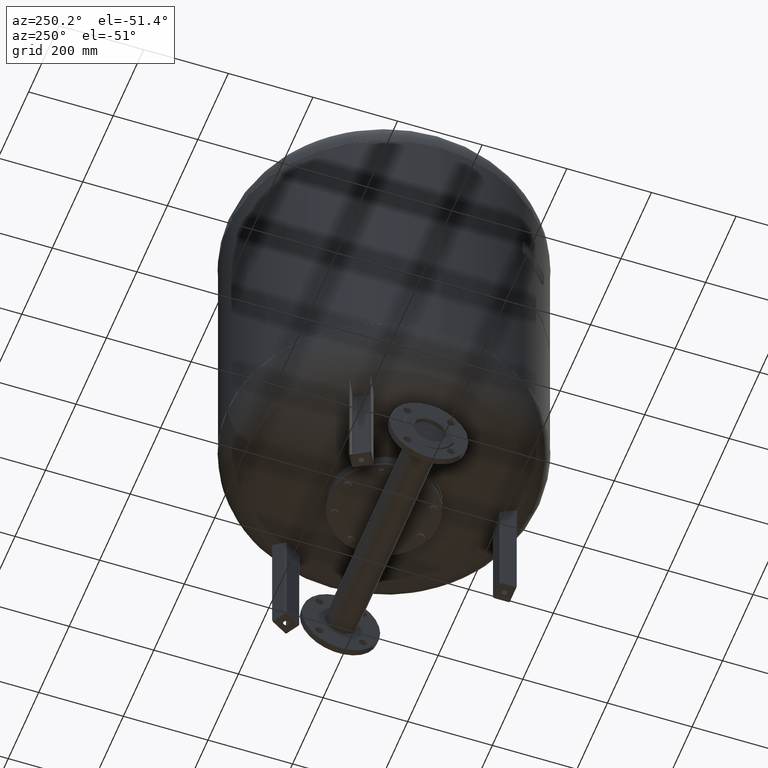
[diagram: clean part render]
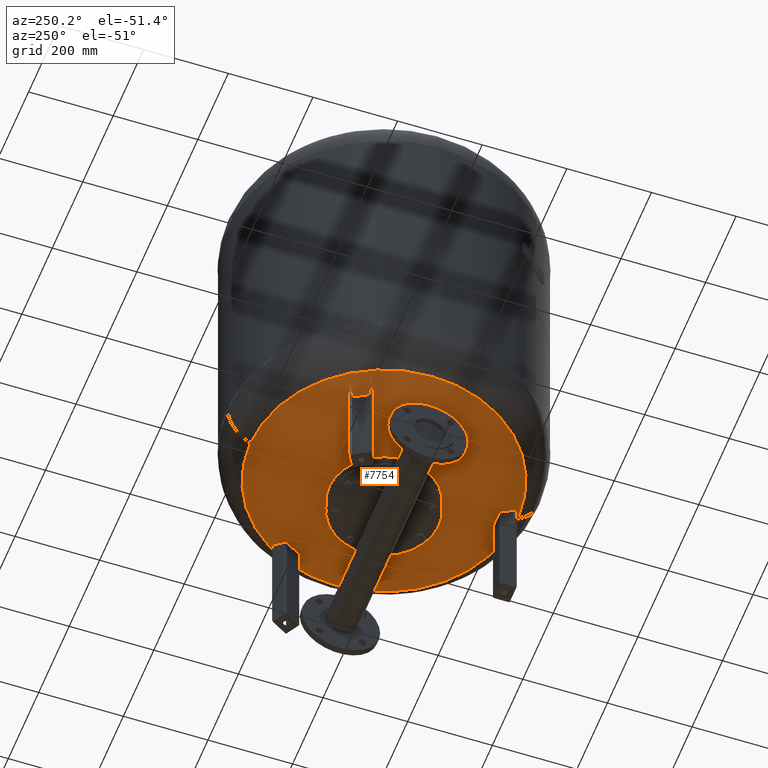
[diagram: same view with one face highlighted and labeled with its STEP entity id]
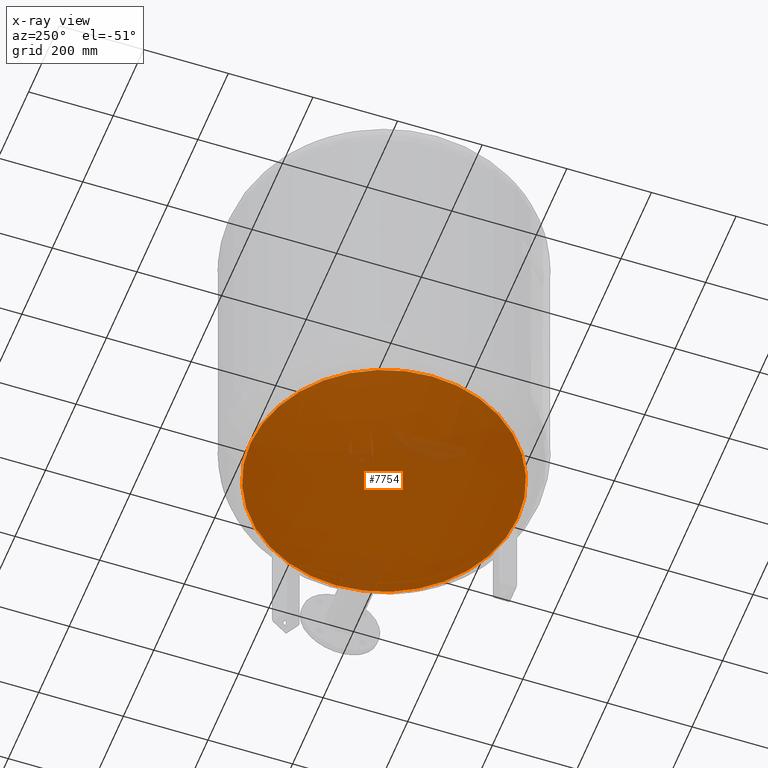
[diagram: x-ray of the same camera — body ghosted, the highlighted face saturated]
A machine part, auxiliary view. The second image highlights one B-rep face of the part: STEP entity #7754.
The next image is the same camera in x-ray: the body ghosted, the highlighted face saturated — about 6% of this face is hidden behind the body in this view.
In plain terms, the highlighted spherical surface has radius 594 mm.
Its self-contained STEP definition (entity closure, byte-faithful):
#7693=CARTESIAN_POINT('',(0.0,-315.931034482758610,276.985505725079410));
#7694=VERTEX_POINT('',#7693);
#7710=CARTESIAN_POINT('',(-3.868912E-014,315.931034482758610,276.985505725079630));
#7711=VERTEX_POINT('',#7710);
#7719=CARTESIAN_POINT('',(-315.931034482758610,-1.671377E-014,276.985505725079520));
#7720=VERTEX_POINT('',#7719);
#7721=CARTESIAN_POINT('',(0.0,-1.671377E-014,276.985505725079520));
#7722=DIRECTION('',(0.0,0.0,1.0));
#7723=DIRECTION('',(-1.0,0.0,0.0));
#7724=AXIS2_PLACEMENT_3D('',#7721,#7722,#7723);
#7725=CIRCLE('',#7724,315.931034482758610);
#7726=EDGE_CURVE('',#7711,#7720,#7725,.T.);
#7728=CARTESIAN_POINT('',(0.0,-1.671377E-014,276.985505725079520));
#7729=DIRECTION('',(0.0,0.0,1.0));
#7730=DIRECTION('',(-1.0,0.0,0.0));
#7731=AXIS2_PLACEMENT_3D('',#7728,#7729,#7730);
#7732=CIRCLE('',#7731,315.931034482758610);
#7733=EDGE_CURVE('',#7720,#7694,#7732,.T.);
#7738=CARTESIAN_POINT('',(0.0,-1.091160E-013,780.0));
#7739=DIRECTION('',(0.0,-1.0,0.0));
#7740=DIRECTION('',(1.0,0.0,0.0));
#7741=AXIS2_PLACEMENT_3D('',#7738,#7739,#7740);
#7742=SPHERICAL_SURFACE('',#7741,594.0);
#7743=ORIENTED_EDGE('',*,*,#7733,.F.);
#7744=ORIENTED_EDGE('',*,*,#7726,.F.);
#7745=CARTESIAN_POINT('',(0.0,-1.671377E-014,276.985505725079520));
#7746=DIRECTION('',(0.0,0.0,1.0));
#7747=DIRECTION('',(-1.0,0.0,0.0));
#7748=AXIS2_PLACEMENT_3D('',#7745,#7746,#7747);
#7749=CIRCLE('',#7748,315.931034482758610);
#7750=EDGE_CURVE('',#7694,#7711,#7749,.T.);
#7751=ORIENTED_EDGE('',*,*,#7750,.F.);
#7752=EDGE_LOOP('',(#7743,#7744,#7751));
#7753=FACE_OUTER_BOUND('',#7752,.T.);
#7754=ADVANCED_FACE('',(#7753),#7742,.T.);